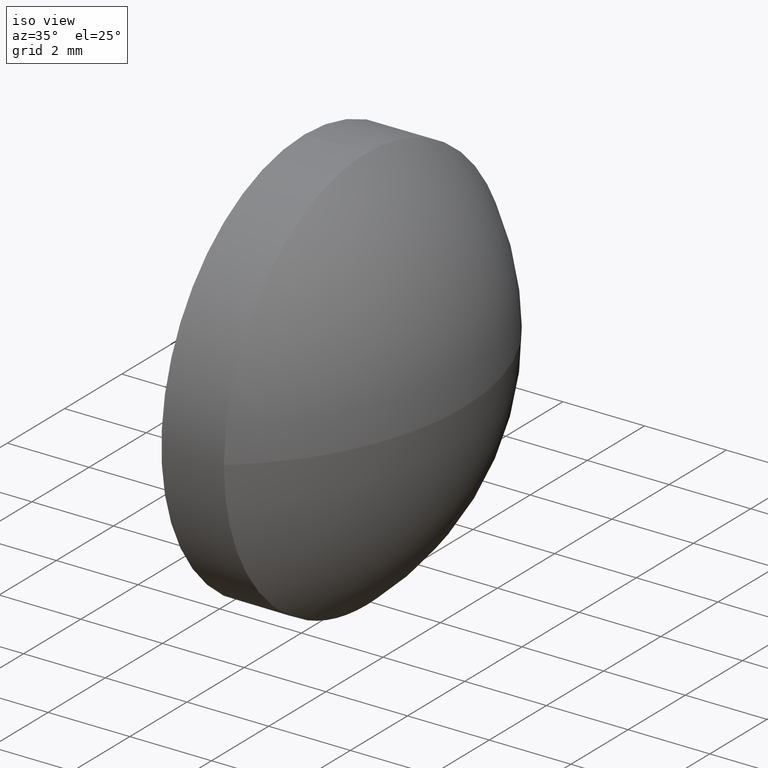
[diagram: clean part render]
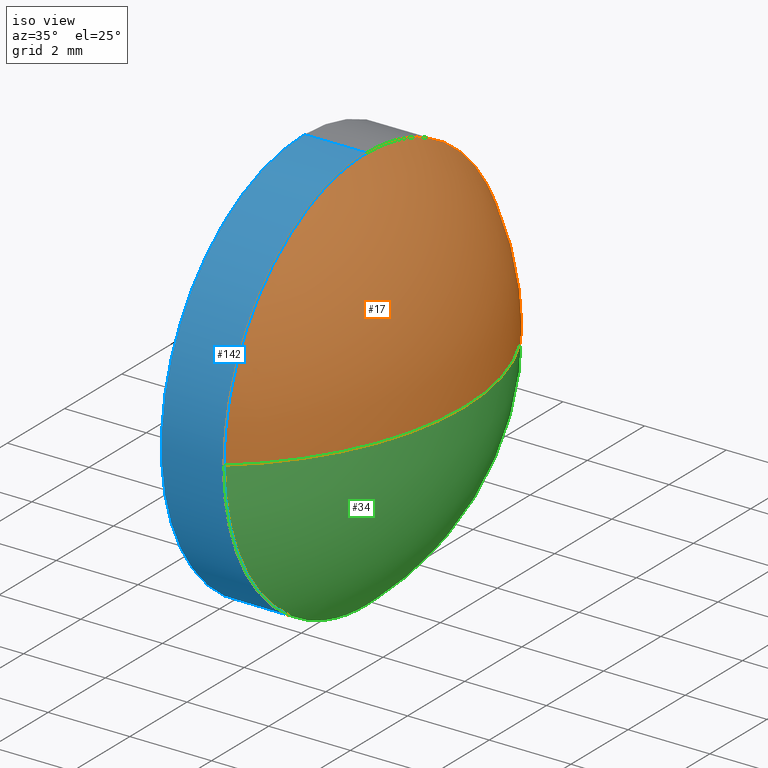
[diagram: same view with three faces highlighted in distinct colors, each labeled with its STEP entity id]
A machine part, iso view with three faces highlighted in distinct colors.
Their STEP definitions:

[orange] entity #17 — the highlighted spherical surface has radius 6.4593 mm.
#4 = CARTESIAN_POINT ( 'NONE',  ( 424.5813353116467400, -21.53983811112432500, 0.0000000000000000000 ) ) ;
#5 = AXIS2_PLACEMENT_3D ( 'NONE', #77, #107, #137 ) ;
#8 = DIRECTION ( 'NONE',  ( 0.0000000000000000000, 1.000000000000000000, 1.224646799147353200E-016 ) ) ;
#11 = DIRECTION ( 'NONE',  ( -1.000000000000000000, -0.0000000000000000000, -0.0000000000000000000 ) ) ;
#13 = CARTESIAN_POINT ( 'NONE',  ( 424.5813353116467400, -26.53983811112431500, 0.0000000000000000000 ) ) ;
#14 = VERTEX_POINT ( 'NONE', #4 ) ;
#15 = AXIS2_PLACEMENT_3D ( 'NONE', #96, #29, #44 ) ;
#16 = ORIENTED_EDGE ( 'NONE', *, *, #150, .F. ) ;
#17 = ADVANCED_FACE ( 'NONE', ( #76 ), #156, .T. ) ;
#19 = ORIENTED_EDGE ( 'NONE', *, *, #145, .T. ) ;
#20 = EDGE_CURVE ( 'NONE', #112, #167, #117, .T. ) ;
#21 = CARTESIAN_POINT ( 'NONE',  ( 426.9513353116466900, -26.53983811112431500, 0.0000000000000000000 ) ) ;
#28 = DIRECTION ( 'NONE',  ( 0.0000000000000000000, 0.0000000000000000000, 1.000000000000000000 ) ) ;
#29 = DIRECTION ( 'NONE',  ( -0.0000000000000000000, 0.0000000000000000000, 1.000000000000000000 ) ) ;
#31 = AXIS2_PLACEMENT_3D ( 'NONE', #116, #37, #162 ) ;
#37 = DIRECTION ( 'NONE',  ( -0.0000000000000000000, 0.0000000000000000000, -1.000000000000000000 ) ) ;
#39 = AXIS2_PLACEMENT_3D ( 'NONE', #13, #11, #28 ) ;
#44 = DIRECTION ( 'NONE',  ( 1.000000000000000000, 0.0000000000000000000, 0.0000000000000000000 ) ) ;
#71 = AXIS2_PLACEMENT_3D ( 'NONE', #174, #109, #8 ) ;
#75 = CIRCLE ( 'NONE', #39, 4.999999999999997300 ) ;
#76 = FACE_OUTER_BOUND ( 'NONE', #148, .T. ) ;
#77 = CARTESIAN_POINT ( 'NONE',  ( 424.5813353116467400, -26.53983811112431500, 0.0000000000000000000 ) ) ;
#87 = ORIENTED_EDGE ( 'NONE', *, *, #20, .F. ) ;
#96 = CARTESIAN_POINT ( 'NONE',  ( 420.4920737082711600, -26.53983811112431500, 0.0000000000000000000 ) ) ;
#107 = DIRECTION ( 'NONE',  ( -1.000000000000000000, -0.0000000000000000000, -0.0000000000000000000 ) ) ;
#109 = DIRECTION ( 'NONE',  ( 0.0000000000000000000, 1.224646799147353200E-016, -1.000000000000000000 ) ) ;
#112 = VERTEX_POINT ( 'NONE', #21 ) ;
#116 = CARTESIAN_POINT ( 'NONE',  ( 420.4920737082711600, -26.53983811112431500, 0.0000000000000000000 ) ) ;
#117 = CIRCLE ( 'NONE', #71, 6.459261603375517200 ) ;
#133 = EDGE_CURVE ( 'NONE', #167, #164, #134, .T. ) ;
#134 = CIRCLE ( 'NONE', #5, 4.999999999999997300 ) ;
#137 = DIRECTION ( 'NONE',  ( 0.0000000000000000000, 0.0000000000000000000, 1.000000000000000000 ) ) ;
#144 = ORIENTED_EDGE ( 'NONE', *, *, #133, .F. ) ;
#145 = EDGE_CURVE ( 'NONE', #112, #14, #173, .T. ) ;
#148 = EDGE_LOOP ( 'NONE', ( #87, #19, #16, #144 ) ) ;
#149 = CARTESIAN_POINT ( 'NONE',  ( 424.5813353116467400, -31.53983811112430400, -6.123233995736756400E-016 ) ) ;
#150 = EDGE_CURVE ( 'NONE', #164, #14, #75, .T. ) ;
#156 = SPHERICAL_SURFACE ( 'NONE', #31, 6.459261603375517200 ) ;
#162 = DIRECTION ( 'NONE',  ( 0.0000000000000000000, 1.000000000000000000, 0.0000000000000000000 ) ) ;
#164 = VERTEX_POINT ( 'NONE', #179 ) ;
#167 = VERTEX_POINT ( 'NONE', #149 ) ;
#173 = CIRCLE ( 'NONE', #15, 6.459261603375510100 ) ;
#174 = CARTESIAN_POINT ( 'NONE',  ( 420.4920737082711600, -26.53983811112431500, 0.0000000000000000000 ) ) ;
#179 = CARTESIAN_POINT ( 'NONE',  ( 424.5813353116467400, -26.53983811112431500, 4.999999999999997300 ) ) ;

[blue] entity #142 — the highlighted cylindrical surface (partial cylindrical patch) has radius 5 mm, axis along (-1, -0, -0).
#5 = AXIS2_PLACEMENT_3D ( 'NONE', #77, #107, #137 ) ;
#18 = VERTEX_POINT ( 'NONE', #160 ) ;
#22 = VERTEX_POINT ( 'NONE', #172 ) ;
#33 = LINE ( 'NONE', #110, #78 ) ;
#35 = FACE_OUTER_BOUND ( 'NONE', #104, .T. ) ;
#36 = AXIS2_PLACEMENT_3D ( 'NONE', #64, #67, #176 ) ;
#40 = DIRECTION ( 'NONE',  ( -1.000000000000000000, -0.0000000000000000000, -0.0000000000000000000 ) ) ;
#42 = AXIS2_PLACEMENT_3D ( 'NONE', #135, #40, #165 ) ;
#45 = ORIENTED_EDGE ( 'NONE', *, *, #170, .F. ) ;
#46 = EDGE_CURVE ( 'NONE', #57, #22, #49, .T. ) ;
#47 = ORIENTED_EDGE ( 'NONE', *, *, #92, .T. ) ;
#49 = CIRCLE ( 'NONE', #178, 4.999999999999997300 ) ;
#54 = CARTESIAN_POINT ( 'NONE',  ( 422.2536630575812600, -26.53983811112431500, 4.999999999999997300 ) ) ;
#57 = VERTEX_POINT ( 'NONE', #122 ) ;
#64 = CARTESIAN_POINT ( 'NONE',  ( 422.2536630575812600, -26.53983811112431500, 0.0000000000000000000 ) ) ;
#65 = ORIENTED_EDGE ( 'NONE', *, *, #133, .T. ) ;
#67 = DIRECTION ( 'NONE',  ( -1.000000000000000000, -0.0000000000000000000, -0.0000000000000000000 ) ) ;
#77 = CARTESIAN_POINT ( 'NONE',  ( 424.5813353116467400, -26.53983811112431500, 0.0000000000000000000 ) ) ;
#78 = VECTOR ( 'NONE', #182, 1000.000000000000000 ) ;
#80 = DIRECTION ( 'NONE',  ( 0.0000000000000000000, 0.0000000000000000000, 1.000000000000000000 ) ) ;
#81 = DIRECTION ( 'NONE',  ( -1.000000000000000000, -0.0000000000000000000, -0.0000000000000000000 ) ) ;
#86 = ORIENTED_EDGE ( 'NONE', *, *, #46, .F. ) ;
#92 = EDGE_CURVE ( 'NONE', #18, #167, #115, .T. ) ;
#97 = EDGE_CURVE ( 'NONE', #164, #22, #186, .T. ) ;
#104 = EDGE_LOOP ( 'NONE', ( #45, #47, #65, #161, #86 ) ) ;
#107 = DIRECTION ( 'NONE',  ( -1.000000000000000000, -0.0000000000000000000, -0.0000000000000000000 ) ) ;
#108 = VECTOR ( 'NONE', #147, 1000.000000000000000 ) ;
#110 = CARTESIAN_POINT ( 'NONE',  ( 422.2536630575812600, -26.53983811112431500, -4.999999999999997300 ) ) ;
#115 = CIRCLE ( 'NONE', #42, 4.999999999999997300 ) ;
#122 = CARTESIAN_POINT ( 'NONE',  ( 423.0513353116466500, -26.53983811112431500, -4.999999999999997300 ) ) ;
#133 = EDGE_CURVE ( 'NONE', #167, #164, #134, .T. ) ;
#134 = CIRCLE ( 'NONE', #5, 4.999999999999997300 ) ;
#135 = CARTESIAN_POINT ( 'NONE',  ( 424.5813353116467400, -26.53983811112431500, 0.0000000000000000000 ) ) ;
#137 = DIRECTION ( 'NONE',  ( 0.0000000000000000000, 0.0000000000000000000, 1.000000000000000000 ) ) ;
#142 = ADVANCED_FACE ( 'NONE', ( #35 ), #154, .T. ) ;
#147 = DIRECTION ( 'NONE',  ( -1.000000000000000000, -0.0000000000000000000, -0.0000000000000000000 ) ) ;
#149 = CARTESIAN_POINT ( 'NONE',  ( 424.5813353116467400, -31.53983811112430400, -6.123233995736756400E-016 ) ) ;
#154 = CYLINDRICAL_SURFACE ( 'NONE', #36, 4.999999999999997300 ) ;
#160 = CARTESIAN_POINT ( 'NONE',  ( 424.5813353116467400, -26.53983811112431500, -4.999999999999997300 ) ) ;
#161 = ORIENTED_EDGE ( 'NONE', *, *, #97, .T. ) ;
#164 = VERTEX_POINT ( 'NONE', #179 ) ;
#165 = DIRECTION ( 'NONE',  ( 0.0000000000000000000, 0.0000000000000000000, 1.000000000000000000 ) ) ;
#167 = VERTEX_POINT ( 'NONE', #149 ) ;
#170 = EDGE_CURVE ( 'NONE', #18, #57, #33, .T. ) ;
#172 = CARTESIAN_POINT ( 'NONE',  ( 423.0513353116466500, -26.53983811112431500, 4.999999999999997300 ) ) ;
#175 = CARTESIAN_POINT ( 'NONE',  ( 423.0513353116466500, -26.53983811112431500, 0.0000000000000000000 ) ) ;
#176 = DIRECTION ( 'NONE',  ( 0.0000000000000000000, 0.0000000000000000000, 1.000000000000000000 ) ) ;
#178 = AXIS2_PLACEMENT_3D ( 'NONE', #175, #81, #80 ) ;
#179 = CARTESIAN_POINT ( 'NONE',  ( 424.5813353116467400, -26.53983811112431500, 4.999999999999997300 ) ) ;
#182 = DIRECTION ( 'NONE',  ( -1.000000000000000000, -0.0000000000000000000, -0.0000000000000000000 ) ) ;
#186 = LINE ( 'NONE', #54, #108 ) ;

[green] entity #34 — the highlighted spherical surface has radius 6.4593 mm.
#4 = CARTESIAN_POINT ( 'NONE',  ( 424.5813353116467400, -21.53983811112432500, 0.0000000000000000000 ) ) ;
#8 = DIRECTION ( 'NONE',  ( 0.0000000000000000000, 1.000000000000000000, 1.224646799147353200E-016 ) ) ;
#14 = VERTEX_POINT ( 'NONE', #4 ) ;
#15 = AXIS2_PLACEMENT_3D ( 'NONE', #96, #29, #44 ) ;
#18 = VERTEX_POINT ( 'NONE', #160 ) ;
#20 = EDGE_CURVE ( 'NONE', #112, #167, #117, .T. ) ;
#21 = CARTESIAN_POINT ( 'NONE',  ( 426.9513353116466900, -26.53983811112431500, 0.0000000000000000000 ) ) ;
#25 = SPHERICAL_SURFACE ( 'NONE', #159, 6.459261603375517200 ) ;
#29 = DIRECTION ( 'NONE',  ( -0.0000000000000000000, 0.0000000000000000000, 1.000000000000000000 ) ) ;
#34 = ADVANCED_FACE ( 'NONE', ( #59 ), #25, .T. ) ;
#40 = DIRECTION ( 'NONE',  ( -1.000000000000000000, -0.0000000000000000000, -0.0000000000000000000 ) ) ;
#42 = AXIS2_PLACEMENT_3D ( 'NONE', #135, #40, #165 ) ;
#44 = DIRECTION ( 'NONE',  ( 1.000000000000000000, 0.0000000000000000000, 0.0000000000000000000 ) ) ;
#59 = FACE_OUTER_BOUND ( 'NONE', #119, .T. ) ;
#71 = AXIS2_PLACEMENT_3D ( 'NONE', #174, #109, #8 ) ;
#92 = EDGE_CURVE ( 'NONE', #18, #167, #115, .T. ) ;
#93 = CARTESIAN_POINT ( 'NONE',  ( 424.5813353116467400, -26.53983811112431500, 0.0000000000000000000 ) ) ;
#94 = ORIENTED_EDGE ( 'NONE', *, *, #92, .F. ) ;
#96 = CARTESIAN_POINT ( 'NONE',  ( 420.4920737082711600, -26.53983811112431500, 0.0000000000000000000 ) ) ;
#101 = AXIS2_PLACEMENT_3D ( 'NONE', #93, #139, #163 ) ;
#105 = EDGE_CURVE ( 'NONE', #14, #18, #128, .T. ) ;
#109 = DIRECTION ( 'NONE',  ( 0.0000000000000000000, 1.224646799147353200E-016, -1.000000000000000000 ) ) ;
#112 = VERTEX_POINT ( 'NONE', #21 ) ;
#115 = CIRCLE ( 'NONE', #42, 4.999999999999997300 ) ;
#117 = CIRCLE ( 'NONE', #71, 6.459261603375517200 ) ;
#119 = EDGE_LOOP ( 'NONE', ( #158, #177, #94, #126 ) ) ;
#120 = CARTESIAN_POINT ( 'NONE',  ( 420.4920737082711600, -26.53983811112431500, 0.0000000000000000000 ) ) ;
#121 = DIRECTION ( 'NONE',  ( 0.0000000000000000000, 1.000000000000000000, 0.0000000000000000000 ) ) ;
#126 = ORIENTED_EDGE ( 'NONE', *, *, #105, .F. ) ;
#128 = CIRCLE ( 'NONE', #101, 4.999999999999997300 ) ;
#135 = CARTESIAN_POINT ( 'NONE',  ( 424.5813353116467400, -26.53983811112431500, 0.0000000000000000000 ) ) ;
#139 = DIRECTION ( 'NONE',  ( -1.000000000000000000, -0.0000000000000000000, -0.0000000000000000000 ) ) ;
#145 = EDGE_CURVE ( 'NONE', #112, #14, #173, .T. ) ;
#146 = DIRECTION ( 'NONE',  ( -0.0000000000000000000, 0.0000000000000000000, -1.000000000000000000 ) ) ;
#149 = CARTESIAN_POINT ( 'NONE',  ( 424.5813353116467400, -31.53983811112430400, -6.123233995736756400E-016 ) ) ;
#158 = ORIENTED_EDGE ( 'NONE', *, *, #145, .F. ) ;
#159 = AXIS2_PLACEMENT_3D ( 'NONE', #120, #146, #121 ) ;
#160 = CARTESIAN_POINT ( 'NONE',  ( 424.5813353116467400, -26.53983811112431500, -4.999999999999997300 ) ) ;
#163 = DIRECTION ( 'NONE',  ( 0.0000000000000000000, 0.0000000000000000000, 1.000000000000000000 ) ) ;
#165 = DIRECTION ( 'NONE',  ( 0.0000000000000000000, 0.0000000000000000000, 1.000000000000000000 ) ) ;
#167 = VERTEX_POINT ( 'NONE', #149 ) ;
#173 = CIRCLE ( 'NONE', #15, 6.459261603375510100 ) ;
#174 = CARTESIAN_POINT ( 'NONE',  ( 420.4920737082711600, -26.53983811112431500, 0.0000000000000000000 ) ) ;
#177 = ORIENTED_EDGE ( 'NONE', *, *, #20, .T. ) ;